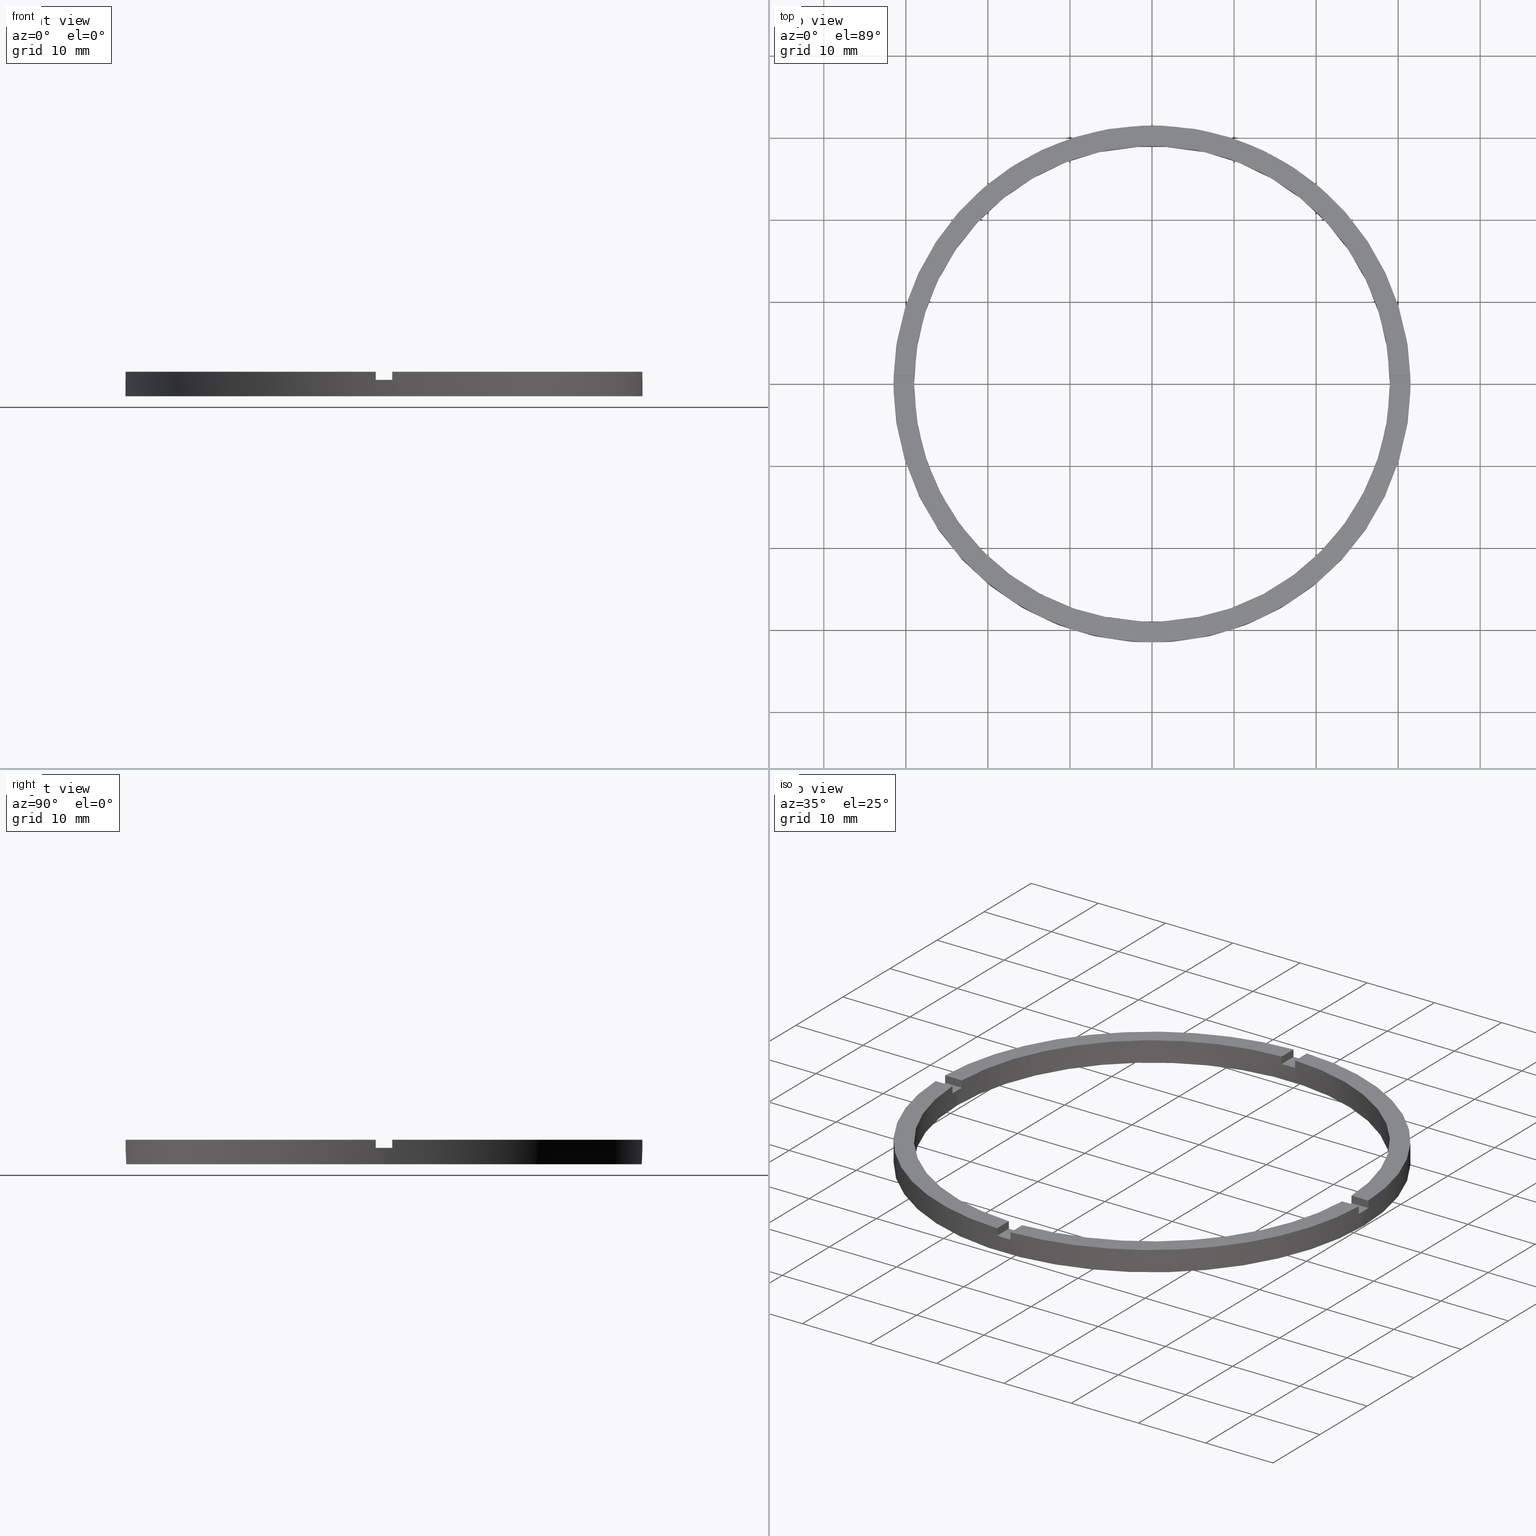
[diagram: canonical four-view strip — front | top / right | iso, engineering-drawing reading convention]
A machine part, canonical four-view strip (front | top / right | iso — engineering-drawing reading convention). The complete STEP part file that produces these views, byte-faithful:
ISO-10303-21;
HEADER;
FILE_DESCRIPTION (( 'STEP AP203' ),
    '1' );
FILE_NAME ('514130.step',
    '2024-12-26T02:40:22',
    ( 'MSI' ),
    ( '' ),
    'SwSTEP 2.0',
    'SolidWorks 2020',
    '' );
FILE_SCHEMA (( 'CONFIG_CONTROL_DESIGN' ));
ENDSEC;

DATA;
#1 = VERTEX_POINT ( 'NONE', #174 ) ;
#2 = ORIENTED_EDGE ( 'NONE', *, *, #105, .F. ) ;
#3 = MECHANICAL_CONTEXT ( 'NONE', #146, 'mechanical' ) ;
#4 = ORIENTED_EDGE ( 'NONE', *, *, #500, .T. ) ;
#5 = CARTESIAN_POINT ( 'NONE',  ( 0.000000000000000000, 0.000000000000000000, 3.000000000000000000 ) ) ;
#6 = VERTEX_POINT ( 'NONE', #61 ) ;
#7 = CARTESIAN_POINT ( 'NONE',  ( 29.00000000000000000, 3.551475717527324030E-15, 3.000000000000000000 ) ) ;
#8 = EDGE_CURVE ( 'NONE', #171, #774, #434, .T. ) ;
#9 = CARTESIAN_POINT ( 'NONE',  ( -31.48412298286233124, 0.9999999999999742428, 3.000000000000000000 ) ) ;
#10 = AXIS2_PLACEMENT_3D ( 'NONE', #551, #651, #600 ) ;
#11 = EDGE_CURVE ( 'NONE', #774, #451, #443, .T. ) ;
#12 = EDGE_CURVE ( 'NONE', #1, #682, #192, .T. ) ;
#13 = EDGE_LOOP ( 'NONE', ( #154, #504, #495, #769 ) ) ;
#14 = DIRECTION ( 'NONE',  ( 1.000000000000000000, 0.000000000000000000, 0.000000000000000000 ) ) ;
#15 = ORIENTED_EDGE ( 'NONE', *, *, #473, .T. ) ;
#16 = EDGE_CURVE ( 'NONE', #737, #451, #709, .T. ) ;
#17 = CARTESIAN_POINT ( 'NONE',  ( 28.98275349237887255, -1.000000000000158540, 3.000000000000000000 ) ) ;
#18 = ORIENTED_EDGE ( 'NONE', *, *, #11, .T. ) ;
#19 = ORIENTED_EDGE ( 'NONE', *, *, #535, .T. ) ;
#20 = AXIS2_PLACEMENT_3D ( 'NONE', #381, #619, #717 ) ;
#21 = DIRECTION ( 'NONE',  ( 1.000000000000000000, 0.000000000000000000, 0.000000000000000000 ) ) ;
#22 = APPROVAL ( #292, 'δָ��' ) ;
#23 = DIRECTION ( 'NONE',  ( 0.000000000000000000, 0.000000000000000000, 1.000000000000000000 ) ) ;
#24 = EDGE_CURVE ( 'NONE', #564, #451, #730, .T. ) ;
#25 = EDGE_LOOP ( 'NONE', ( #711, #510, #498, #658 ) ) ;
#26 = ORIENTED_EDGE ( 'NONE', *, *, #323, .T. ) ;
#27 = DIRECTION ( 'NONE',  ( 1.000000000000000000, 0.000000000000000000, 0.000000000000000000 ) ) ;
#28 = ORIENTED_EDGE ( 'NONE', *, *, #242, .T. ) ;
#29 = DIRECTION ( 'NONE',  ( 1.301042606982605074E-16, -1.000000000000000000, 0.000000000000000000 ) ) ;
#30 = CARTESIAN_POINT ( 'NONE',  ( 31.50000000000000000, 3.857637417314162689E-15, 3.000000000000000000 ) ) ;
#31 = VERTEX_POINT ( 'NONE', #387 ) ;
#32 = EDGE_LOOP ( 'NONE', ( #280, #421, #26, #686, #472, #673, #662, #244, #536, #490, #548, #159 ) ) ;
#33 = ADVANCED_FACE ( 'NONE', ( #454 ), #543, .T. ) ;
#34 = DIRECTION ( 'NONE',  ( -0.000000000000000000, 0.000000000000000000, 1.000000000000000000 ) ) ;
#35 = ORIENTED_EDGE ( 'NONE', *, *, #765, .F. ) ;
#36 = VERTEX_POINT ( 'NONE', #423 ) ;
#37 = DIRECTION ( 'NONE',  ( 1.000000000000000000, 0.000000000000000000, -0.000000000000000000 ) ) ;
#38 = DIRECTION ( 'NONE',  ( -6.505213034913022906E-17, 1.000000000000000000, 0.000000000000000000 ) ) ;
#39 = VERTEX_POINT ( 'NONE', #741 ) ;
#40 = ORIENTED_EDGE ( 'NONE', *, *, #424, .T. ) ;
#41 = CIRCLE ( 'NONE', #287, 29.00000000000000000 ) ;
#42 = VERTEX_POINT ( 'NONE', #262 ) ;
#43 = LINE ( 'NONE', #590, #299 ) ;
#44 = CARTESIAN_POINT ( 'NONE',  ( -1.000000000000162759, -21.50000000000017764, 3.000000000000000000 ) ) ;
#45 = ORIENTED_EDGE ( 'NONE', *, *, #593, .T. ) ;
#46 = DIRECTION ( 'NONE',  ( 0.000000000000000000, 0.000000000000000000, 1.000000000000000000 ) ) ;
#47 = LINE ( 'NONE', #315, #203 ) ;
#48 = ORIENTED_EDGE ( 'NONE', *, *, #71, .F. ) ;
#49 = DIRECTION ( 'NONE',  ( 1.000000000000000000, 0.000000000000000000, 0.000000000000000000 ) ) ;
#50 = EDGE_CURVE ( 'NONE', #540, #774, #198, .T. ) ;
#51 = DIRECTION ( 'NONE',  ( -0.000000000000000000, -0.000000000000000000, -1.000000000000000000 ) ) ;
#52 = DIRECTION ( 'NONE',  ( 0.000000000000000000, 0.000000000000000000, 1.000000000000000000 ) ) ;
#53 = AXIS2_PLACEMENT_3D ( 'NONE', #518, #264, #448 ) ;
#54 = CARTESIAN_POINT ( 'NONE',  ( 0.000000000000000000, 0.000000000000000000, 0.000000000000000000 ) ) ;
#55 = CARTESIAN_POINT ( 'NONE',  ( 0.000000000000000000, 0.000000000000000000, 2.000000000000000000 ) ) ;
#56 = DIRECTION ( 'NONE',  ( 0.000000000000000000, 0.000000000000000000, 1.000000000000000000 ) ) ;
#57 = AXIS2_PLACEMENT_3D ( 'NONE', #271, #576, #726 ) ;
#58 = CARTESIAN_POINT ( 'NONE',  ( 31.48412298286233479, 0.9999999999998414602, 2.000000000000000000 ) ) ;
#59 = CARTESIAN_POINT ( 'NONE',  ( -1.000000000000161871, -28.98275349237887255, 3.000000000000000000 ) ) ;
#60 = CARTESIAN_POINT ( 'NONE',  ( 0.000000000000000000, 0.000000000000000000, 3.000000000000000000 ) ) ;
#61 = CARTESIAN_POINT ( 'NONE',  ( 31.50000000000000000, 3.857637417314162689E-15, 2.000000000000000000 ) ) ;
#62 = CARTESIAN_POINT ( 'NONE',  ( -28.98275349237887966, 0.9999999999999746869, 3.000000000000000000 ) ) ;
#63 = CARTESIAN_POINT ( 'NONE',  ( -29.00000000000000000, 0.000000000000000000, 3.000000000000000000 ) ) ;
#64 = PERSON_AND_ORGANIZATION_ROLE ( 'design_supplier' ) ;
#65 = AXIS2_PLACEMENT_3D ( 'NONE', #509, #76, #27 ) ;
#66 = CARTESIAN_POINT ( 'NONE',  ( -1.000000000000024425, 31.48412298286233124, 3.000000000000000000 ) ) ;
#67 = DIRECTION ( 'NONE',  ( 0.000000000000000000, -0.000000000000000000, 1.000000000000000000 ) ) ;
#68 = CARTESIAN_POINT ( 'NONE',  ( 0.9999999999998382405, -28.98275349237888321, 3.000000000000000000 ) ) ;
#69 = CARTESIAN_POINT ( 'NONE',  ( -31.48412298286233124, 0.9999999999999742428, 3.000000000000000000 ) ) ;
#70 = APPROVAL_STATUS ( 'not_yet_approved' ) ;
#71 = EDGE_CURVE ( 'NONE', #106, #39, #715, .T. ) ;
#72 = CC_DESIGN_APPROVAL ( #22, ( #332 ) ) ;
#73 = DIRECTION ( 'NONE',  ( 1.000000000000000000, 0.000000000000000000, 0.000000000000000000 ) ) ;
#74 = DIRECTION ( 'NONE',  ( 1.000000000000000000, 0.000000000000000000, 0.000000000000000000 ) ) ;
#75 = EDGE_CURVE ( 'NONE', #564, #653, #718, .T. ) ;
#76 = DIRECTION ( 'NONE',  ( 0.000000000000000000, 0.000000000000000000, 1.000000000000000000 ) ) ;
#77 = DIRECTION ( 'NONE',  ( 1.000000000000000000, 0.000000000000000000, 0.000000000000000000 ) ) ;
#78 = DIRECTION ( 'NONE',  ( -1.000000000000000000, -6.505213034913022906E-17, 0.000000000000000000 ) ) ;
#79 = ADVANCED_FACE ( 'NONE', ( #202 ), #112, .F. ) ;
#80 = AXIS2_PLACEMENT_3D ( 'NONE', #603, #760, #334 ) ;
#81 = AXIS2_PLACEMENT_3D ( 'NONE', #60, #584, #180 ) ;
#82 = DIRECTION ( 'NONE',  ( 1.301042606982605074E-16, -1.000000000000000000, 0.000000000000000000 ) ) ;
#83 = CARTESIAN_POINT ( 'NONE',  ( 31.48412298286233479, 0.9999999999998414602, 3.000000000000000000 ) ) ;
#84 = CARTESIAN_POINT ( 'NONE',  ( -1.000000000000161871, -28.98275349237887255, 2.000000000000000000 ) ) ;
#85 = PLANE ( 'NONE',  #283 ) ;
#86 = DIRECTION ( 'NONE',  ( 0.000000000000000000, 0.000000000000000000, 1.000000000000000000 ) ) ;
#87 = AXIS2_PLACEMENT_3D ( 'NONE', #5, #618, #624 ) ;
#88 = FACE_OUTER_BOUND ( 'NONE', #685, .T. ) ;
#89 = DIRECTION ( 'NONE',  ( -1.000000000000000000, -1.301042606982605074E-16, 0.000000000000000000 ) ) ;
#90 = VECTOR ( 'NONE', #341, 1000.000000000000000 ) ;
#91 = AXIS2_PLACEMENT_3D ( 'NONE', #314, #558, #205 ) ;
#92 = AXIS2_PLACEMENT_3D ( 'NONE', #738, #641, #14 ) ;
#93 = CARTESIAN_POINT ( 'NONE',  ( 0.9999999999998386846, -31.48412298286233479, 3.000000000000000000 ) ) ;
#94 = EDGE_CURVE ( 'NONE', #171, #564, #204, .T. ) ;
#95 = DIRECTION ( 'NONE',  ( 0.000000000000000000, 1.000000000000000000, 0.000000000000000000 ) ) ;
#96 = DIRECTION ( 'NONE',  ( 1.000000000000000000, 0.000000000000000000, 0.000000000000000000 ) ) ;
#97 = ORIENTED_EDGE ( 'NONE', *, *, #235, .F. ) ;
#98 = EDGE_CURVE ( 'NONE', #31, #682, #601, .T. ) ;
#99 = LINE ( 'NONE', #243, #90 ) ;
#100 = CARTESIAN_POINT ( 'NONE',  ( -28.98275349237887610, -1.000000000000025313, 3.000000000000000000 ) ) ;
#101 = CARTESIAN_POINT ( 'NONE',  ( 28.98275349237887255, -1.000000000000158540, 3.000000000000000000 ) ) ;
#102 = CARTESIAN_POINT ( 'NONE',  ( 31.48412298286232414, -1.000000000000158540, 3.000000000000000000 ) ) ;
#103 = CARTESIAN_POINT ( 'NONE',  ( 0.000000000000000000, 0.000000000000000000, 2.000000000000000000 ) ) ;
#104 = APPROVAL ( #520, 'δָ��' ) ;
#105 = EDGE_CURVE ( 'NONE', #166, #278, #99, .T. ) ;
#106 = VERTEX_POINT ( 'NONE', #68 ) ;
#107 = CALENDAR_DATE ( 2024, 26, 12 ) ;
#108 = LOCAL_TIME ( 10, 40, 22.00000000000000000, #644 ) ;
#109 = ADVANCED_BREP_SHAPE_REPRESENTATION ( '514130', ( #256, #211 ), #306 ) ;
#110 = PERSON_AND_ORGANIZATION ( #485, #716 ) ;
#111 = ADVANCED_FACE ( 'NONE', ( #88 ), #499, .T. ) ;
#112 = PLANE ( 'NONE',  #91 ) ;
#113 = DIRECTION ( 'NONE',  ( -0.000000000000000000, -0.000000000000000000, -1.000000000000000000 ) ) ;
#114 = PERSON_AND_ORGANIZATION ( #485, #716 ) ;
#115 = CARTESIAN_POINT ( 'NONE',  ( -31.48412298286233124, 0.9999999999999742428, 2.000000000000000000 ) ) ;
#116 = EDGE_CURVE ( 'NONE', #187, #700, #353, .T. ) ;
#117 = CARTESIAN_POINT ( 'NONE',  ( -28.98275349237887610, -1.000000000000025313, 2.000000000000000000 ) ) ;
#118 = CALENDAR_DATE ( 2024, 26, 12 ) ;
#119 = DATE_AND_TIME ( #125, #366 ) ;
#120 = APPROVAL_PERSON_ORGANIZATION ( #110, #484, #452 ) ;
#121 = CARTESIAN_POINT ( 'NONE',  ( 0.9999999999999754641, 28.98275349237887966, 3.000000000000000000 ) ) ;
#122 = PERSON_AND_ORGANIZATION ( #485, #716 ) ;
#123 = CARTESIAN_POINT ( 'NONE',  ( 0.000000000000000000, 0.000000000000000000, 2.000000000000000000 ) ) ;
#124 = CARTESIAN_POINT ( 'NONE',  ( 0.000000000000000000, 0.000000000000000000, 3.000000000000000000 ) ) ;
#125 = CALENDAR_DATE ( 2024, 26, 12 ) ;
#126 = AXIS2_PLACEMENT_3D ( 'NONE', #659, #755, #748 ) ;
#127 = EDGE_CURVE ( 'NONE', #699, #612, #349, .T. ) ;
#128 = EDGE_LOOP ( 'NONE', ( #251, #772, #275, #513 ) ) ;
#129 = EDGE_LOOP ( 'NONE', ( #554, #756, #779, #288 ) ) ;
#130 = EDGE_CURVE ( 'NONE', #440, #1, #480, .T. ) ;
#131 = APPROVAL_DATE_TIME ( #639, #484 ) ;
#132 = ORIENTED_EDGE ( 'NONE', *, *, #732, .T. ) ;
#133 = APPROVAL_DATE_TIME ( #119, #104 ) ;
#134 = EDGE_CURVE ( 'NONE', #502, #455, #229, .T. ) ;
#135 = PERSON_AND_ORGANIZATION ( #485, #716 ) ;
#136 = FACE_BOUND ( 'NONE', #430, .T. ) ;
#137 = DIRECTION ( 'NONE',  ( 1.000000000000000000, 0.000000000000000000, 0.000000000000000000 ) ) ;
#138 = VECTOR ( 'NONE', #710, 1000.000000000000000 ) ;
#139 = CIRCLE ( 'NONE', #20, 29.00000000000000000 ) ;
#140 = ORIENTED_EDGE ( 'NONE', *, *, #50, .T. ) ;
#141 = CIRCLE ( 'NONE', #628, 29.00000000000000000 ) ;
#142 = PRODUCT_DEFINITION_FORMATION_WITH_SPECIFIED_SOURCE ( '�κ�', '', #269, .NOT_KNOWN. ) ;
#143 = VECTOR ( 'NONE', #82, 1000.000000000000000 ) ;
#144 = EDGE_CURVE ( 'NONE', #749, #653, #744, .T. ) ;
#145 = FACE_OUTER_BOUND ( 'NONE', #179, .T. ) ;
#146 = APPLICATION_CONTEXT ( 'configuration controlled 3d designs of mechanical parts and assemblies' ) ;
#147 = VERTEX_POINT ( 'NONE', #199 ) ;
#148 = CIRCLE ( 'NONE', #476, 31.50000000000000000 ) ;
#149 = ORIENTED_EDGE ( 'NONE', *, *, #16, .F. ) ;
#150 = VECTOR ( 'NONE', #467, 1000.000000000000000 ) ;
#151 = ORIENTED_EDGE ( 'NONE', *, *, #378, .F. ) ;
#152 = FACE_OUTER_BOUND ( 'NONE', #25, .T. ) ;
#153 = VECTOR ( 'NONE', #231, 1000.000000000000000 ) ;
#154 = ORIENTED_EDGE ( 'NONE', *, *, #254, .F. ) ;
#155 = LINE ( 'NONE', #528, #153 ) ;
#156 = CARTESIAN_POINT ( 'NONE',  ( -1.000000000000161426, -31.48412298286232414, 3.000000000000000000 ) ) ;
#157 = CIRCLE ( 'NONE', #208, 29.00000000000000000 ) ;
#158 = VERTEX_POINT ( 'NONE', #100 ) ;
#159 = ORIENTED_EDGE ( 'NONE', *, *, #575, .T. ) ;
#160 = VECTOR ( 'NONE', #507, 1000.000000000000000 ) ;
#161 = CLOSED_SHELL ( 'NONE', ( #414, #568, #33, #745, #559, #489, #357, #259, #255, #313, #316, #647, #324, #763, #441, #565, #605, #111, #268, #79, #668 ) ) ;
#162 = CARTESIAN_POINT ( 'NONE',  ( 0.000000000000000000, 0.000000000000000000, 2.000000000000000000 ) ) ;
#163 = DIRECTION ( 'NONE',  ( 1.000000000000000000, 0.000000000000000000, 0.000000000000000000 ) ) ;
#164 = CARTESIAN_POINT ( 'NONE',  ( -1.000000000000024425, 28.98275349237887610, 3.000000000000000000 ) ) ;
#165 = CIRCLE ( 'NONE', #625, 31.50000000000000000 ) ;
#166 = VERTEX_POINT ( 'NONE', #17 ) ;
#167 = ORIENTED_EDGE ( 'NONE', *, *, #197, .T. ) ;
#168 = VECTOR ( 'NONE', #488, 1000.000000000000000 ) ;
#169 = ORIENTED_EDGE ( 'NONE', *, *, #8, .T. ) ;
#170 = CIRCLE ( 'NONE', #57, 29.00000000000000000 ) ;
#171 = VERTEX_POINT ( 'NONE', #66 ) ;
#172 = LINE ( 'NONE', #93, #660 ) ;
#173 = ORIENTED_EDGE ( 'NONE', *, *, #201, .T. ) ;
#174 = CARTESIAN_POINT ( 'NONE',  ( 29.00000000000000000, 3.551475717527324030E-15, 0.000000000000000000 ) ) ;
#175 = LINE ( 'NONE', #279, #669 ) ;
#176 = VERTEX_POINT ( 'NONE', #248 ) ;
#177 = CARTESIAN_POINT ( 'NONE',  ( -31.50000000000000000, 0.000000000000000000, 3.000000000000000000 ) ) ;
#178 = LINE ( 'NONE', #664, #675 ) ;
#179 = EDGE_LOOP ( 'NONE', ( #557, #429, #167, #151, #752, #19 ) ) ;
#180 = DIRECTION ( 'NONE',  ( 1.000000000000000000, 0.000000000000000000, -0.000000000000000000 ) ) ;
#181 = ORIENTED_EDGE ( 'NONE', *, *, #621, .F. ) ;
#182 = FACE_OUTER_BOUND ( 'NONE', #521, .T. ) ;
#183 = VERTEX_POINT ( 'NONE', #409 ) ;
#184 = VECTOR ( 'NONE', #734, 1000.000000000000000 ) ;
#185 = ORIENTED_EDGE ( 'NONE', *, *, #541, .T. ) ;
#186 = LINE ( 'NONE', #44, #143 ) ;
#187 = VERTEX_POINT ( 'NONE', #115 ) ;
#188 = ORIENTED_EDGE ( 'NONE', *, *, #346, .F. ) ;
#189 = DIRECTION ( 'NONE',  ( 0.000000000000000000, -0.000000000000000000, 1.000000000000000000 ) ) ;
#190 = EDGE_LOOP ( 'NONE', ( #2, #207, #210, #360 ) ) ;
#191 = AXIS2_PLACEMENT_3D ( 'NONE', #403, #542, #585 ) ;
#192 = CIRCLE ( 'NONE', #761, 29.00000000000000000 ) ;
#193 = DIRECTION ( 'NONE',  ( 0.000000000000000000, 0.000000000000000000, 1.000000000000000000 ) ) ;
#194 = ORIENTED_EDGE ( 'NONE', *, *, #134, .F. ) ;
#195 = VECTOR ( 'NONE', #246, 1000.000000000000000 ) ;
#196 = AXIS2_PLACEMENT_3D ( 'NONE', #588, #595, #352 ) ;
#197 = EDGE_CURVE ( 'NONE', #42, #705, #746, .T. ) ;
#198 = CIRCLE ( 'NONE', #416, 31.50000000000000000 ) ;
#199 = CARTESIAN_POINT ( 'NONE',  ( 0.9999999999998386846, -31.48412298286233479, 3.000000000000000000 ) ) ;
#200 = LINE ( 'NONE', #101, #450 ) ;
#201 = EDGE_CURVE ( 'NONE', #158, #455, #41, .T. ) ;
#202 = FACE_OUTER_BOUND ( 'NONE', #282, .T. ) ;
#203 = VECTOR ( 'NONE', #317, 1000.000000000000000 ) ;
#204 = LINE ( 'NONE', #648, #606 ) ;
#205 = DIRECTION ( 'NONE',  ( 0.000000000000000000, 0.000000000000000000, -1.000000000000000000 ) ) ;
#206 = VECTOR ( 'NONE', #479, 1000.000000000000000 ) ;
#207 = ORIENTED_EDGE ( 'NONE', *, *, #477, .F. ) ;
#208 = AXIS2_PLACEMENT_3D ( 'NONE', #775, #370, #373 ) ;
#209 = PERSON_AND_ORGANIZATION_ROLE ( 'classification_officer' ) ;
#210 = ORIENTED_EDGE ( 'NONE', *, *, #508, .F. ) ;
#211 = AXIS2_PLACEMENT_3D ( 'NONE', #581, #228, #49 ) ;
#212 = DIRECTION ( 'NONE',  ( -0.000000000000000000, -0.000000000000000000, -1.000000000000000000 ) ) ;
#213 = EDGE_CURVE ( 'NONE', #383, #183, #555, .T. ) ;
#214 = CARTESIAN_POINT ( 'NONE',  ( 0.000000000000000000, 0.000000000000000000, 3.000000000000000000 ) ) ;
#215 = CARTESIAN_POINT ( 'NONE',  ( -28.98275349237887966, 0.9999999999999746869, 3.000000000000000000 ) ) ;
#216 = ORIENTED_EDGE ( 'NONE', *, *, #722, .T. ) ;
#217 = CARTESIAN_POINT ( 'NONE',  ( 31.48412298286232414, -1.000000000000158540, 3.000000000000000000 ) ) ;
#218 = CARTESIAN_POINT ( 'NONE',  ( 0.000000000000000000, 0.000000000000000000, 3.000000000000000000 ) ) ;
#219 = DIRECTION ( 'NONE',  ( 0.000000000000000000, 0.000000000000000000, 1.000000000000000000 ) ) ;
#220 = ORIENTED_EDGE ( 'NONE', *, *, #346, .T. ) ;
#221 = ORIENTED_EDGE ( 'NONE', *, *, #523, .F. ) ;
#222 = ORIENTED_EDGE ( 'NONE', *, *, #130, .F. ) ;
#223 = PLANE ( 'NONE',  #126 ) ;
#224 = CARTESIAN_POINT ( 'NONE',  ( -31.50000000000000000, 0.000000000000000000, 2.000000000000000000 ) ) ;
#225 = EDGE_CURVE ( 'NONE', #737, #298, #43, .T. ) ;
#226 = DIRECTION ( 'NONE',  ( 0.000000000000000000, 0.000000000000000000, 1.000000000000000000 ) ) ;
#227 = VECTOR ( 'NONE', #739, 1000.000000000000000 ) ;
#228 = DIRECTION ( 'NONE',  ( 0.000000000000000000, 0.000000000000000000, 1.000000000000000000 ) ) ;
#229 = LINE ( 'NONE', #59, #227 ) ;
#230 = AXIS2_PLACEMENT_3D ( 'NONE', #162, #766, #137 ) ;
#231 = DIRECTION ( 'NONE',  ( -1.000000000000000000, -6.505213034913022906E-17, -0.000000000000000000 ) ) ;
#232 = EDGE_CURVE ( 'NONE', #257, #42, #47, .T. ) ;
#233 = APPLICATION_PROTOCOL_DEFINITION ( 'international standard', 'config_control_design', 1994, #146 ) ;
#234 = AXIS2_PLACEMENT_3D ( 'NONE', #218, #318, #750 ) ;
#235 = EDGE_CURVE ( 'NONE', #298, #36, #714, .T. ) ;
#236 = CARTESIAN_POINT ( 'NONE',  ( -1.000000000000024425, 31.48412298286233124, 2.000000000000000000 ) ) ;
#237 = APPLICATION_PROTOCOL_DEFINITION ( 'international standard', 'config_control_design', 1994, #527 ) ;
#238 = PLANE ( 'NONE',  #613 ) ;
#239 = DIRECTION ( 'NONE',  ( 1.000000000000000000, 1.951563910473908228E-16, -0.000000000000000000 ) ) ;
#240 = CC_DESIGN_APPROVAL ( #484, ( #142 ) ) ;
#241 = ORIENTED_EDGE ( 'NONE', *, *, #144, .F. ) ;
#242 = EDGE_CURVE ( 'NONE', #6, #383, #707, .T. ) ;
#243 = CARTESIAN_POINT ( 'NONE',  ( 21.49999999999999645, -1.000000000000159206, 3.000000000000000000 ) ) ;
#244 = ORIENTED_EDGE ( 'NONE', *, *, #375, .F. ) ;
#245 = DIRECTION ( 'NONE',  ( -1.951563910473908228E-16, 1.000000000000000000, 0.000000000000000000 ) ) ;
#246 = DIRECTION ( 'NONE',  ( -0.000000000000000000, -0.000000000000000000, -1.000000000000000000 ) ) ;
#247 = ORIENTED_EDGE ( 'NONE', *, *, #586, .F. ) ;
#248 = CARTESIAN_POINT ( 'NONE',  ( 31.50000000000000000, 3.857637417314162689E-15, 0.000000000000000000 ) ) ;
#249 = ORIENTED_EDGE ( 'NONE', *, *, #130, .T. ) ;
#250 = ORIENTED_EDGE ( 'NONE', *, *, #645, .T. ) ;
#251 = ORIENTED_EDGE ( 'NONE', *, *, #94, .T. ) ;
#252 = DIRECTION ( 'NONE',  ( 1.000000000000000000, 1.951563910473908228E-16, -0.000000000000000000 ) ) ;
#253 = ORIENTED_EDGE ( 'NONE', *, *, #674, .T. ) ;
#254 = EDGE_CURVE ( 'NONE', #777, #437, #407, .T. ) ;
#255 = ADVANCED_FACE ( 'NONE', ( #666 ), #453, .F. ) ;
#256 = MANIFOLD_SOLID_BREP ( '�г�-����1', #161 ) ;
#257 = VERTEX_POINT ( 'NONE', #494 ) ;
#258 = CARTESIAN_POINT ( 'NONE',  ( 0.9999999999998382405, -28.98275349237888321, 3.000000000000000000 ) ) ;
#259 = ADVANCED_FACE ( 'NONE', ( #764 ), #768, .T. ) ;
#260 = CARTESIAN_POINT ( 'NONE',  ( -21.50000000000018119, -1.000000000000023981, 2.000000000000000000 ) ) ;
#261 = ORIENTED_EDGE ( 'NONE', *, *, #339, .F. ) ;
#262 = CARTESIAN_POINT ( 'NONE',  ( -31.48412298286233124, -1.000000000000025757, 2.000000000000000000 ) ) ;
#263 = CARTESIAN_POINT ( 'NONE',  ( 21.49999999999999645, 0.9999999999998409050, 2.000000000000000000 ) ) ;
#264 = DIRECTION ( 'NONE',  ( 0.000000000000000000, -0.000000000000000000, 1.000000000000000000 ) ) ;
#265 = PRODUCT_RELATED_PRODUCT_CATEGORY ( 'detail', '', ( #269 ) ) ;
#266 = CARTESIAN_POINT ( 'NONE',  ( 0.000000000000000000, 0.000000000000000000, 3.000000000000000000 ) ) ;
#267 = PLANE ( 'NONE',  #458 ) ;
#268 = ADVANCED_FACE ( 'NONE', ( #503 ), #223, .F. ) ;
#269 = PRODUCT ( '514130', '514130', '', ( #3 ) ) ;
#270 = DIRECTION ( 'NONE',  ( 1.000000000000000000, 0.000000000000000000, 0.000000000000000000 ) ) ;
#271 = CARTESIAN_POINT ( 'NONE',  ( 0.000000000000000000, 0.000000000000000000, 2.000000000000000000 ) ) ;
#272 = EDGE_LOOP ( 'NONE', ( #549, #284 ) ) ;
#273 = ORIENTED_EDGE ( 'NONE', *, *, #201, .F. ) ;
#274 = ORIENTED_EDGE ( 'NONE', *, *, #591, .F. ) ;
#275 = ORIENTED_EDGE ( 'NONE', *, *, #11, .F. ) ;
#276 = CARTESIAN_POINT ( 'NONE',  ( 31.48412298286233479, 0.9999999999998414602, 3.000000000000000000 ) ) ;
#277 = ORIENTED_EDGE ( 'NONE', *, *, #213, .F. ) ;
#278 = VERTEX_POINT ( 'NONE', #217 ) ;
#279 = CARTESIAN_POINT ( 'NONE',  ( -21.50000000000018119, 0.9999999999999761302, 3.000000000000000000 ) ) ;
#280 = ORIENTED_EDGE ( 'NONE', *, *, #500, .F. ) ;
#281 = ORIENTED_EDGE ( 'NONE', *, *, #213, .T. ) ;
#282 = EDGE_LOOP ( 'NONE', ( #247, #501, #640, #690 ) ) ;
#283 = AXIS2_PLACEMENT_3D ( 'NONE', #326, #534, #781 ) ;
#284 = ORIENTED_EDGE ( 'NONE', *, *, #722, .F. ) ;
#285 = DIRECTION ( 'NONE',  ( 1.000000000000000000, 0.000000000000000000, 0.000000000000000000 ) ) ;
#286 = DIRECTION ( 'NONE',  ( -1.301042606982605074E-16, 1.000000000000000000, -0.000000000000000000 ) ) ;
#287 = AXIS2_PLACEMENT_3D ( 'NONE', #214, #505, #311 ) ;
#288 = ORIENTED_EDGE ( 'NONE', *, *, #609, .T. ) ;
#289 =( NAMED_UNIT ( * ) PLANE_ANGLE_UNIT ( ) SI_UNIT ( $, .RADIAN. ) );
#290 = EDGE_CURVE ( 'NONE', #502, #39, #771, .T. ) ;
#291 = ORIENTED_EDGE ( 'NONE', *, *, #75, .T. ) ;
#292 = APPROVAL_STATUS ( 'not_yet_approved' ) ;
#293 = EDGE_CURVE ( 'NONE', #679, #36, #506, .T. ) ;
#294 = CARTESIAN_POINT ( 'NONE',  ( 0.000000000000000000, 0.000000000000000000, 2.000000000000000000 ) ) ;
#295 = CARTESIAN_POINT ( 'NONE',  ( 0.9999999999998373523, -21.50000000000017764, 2.000000000000000000 ) ) ;
#296 = ORIENTED_EDGE ( 'NONE', *, *, #473, .F. ) ;
#297 = VECTOR ( 'NONE', #344, 1000.000000000000000 ) ;
#298 = VERTEX_POINT ( 'NONE', #121 ) ;
#299 = VECTOR ( 'NONE', #561, 1000.000000000000000 ) ;
#300 = EDGE_LOOP ( 'NONE', ( #762, #552, #40, #35 ) ) ;
#301 = DIRECTION ( 'NONE',  ( 1.951563910473908228E-16, -1.000000000000000000, 0.000000000000000000 ) ) ;
#302 = CARTESIAN_POINT ( 'NONE',  ( -1.000000000000024425, 31.48412298286233124, 3.000000000000000000 ) ) ;
#303 = ORIENTED_EDGE ( 'NONE', *, *, #98, .T. ) ;
#304 = ORIENTED_EDGE ( 'NONE', *, *, #127, .F. ) ;
#305 = CARTESIAN_POINT ( 'NONE',  ( -1.000000000000162759, -21.50000000000017764, 2.000000000000000000 ) ) ;
#306 =( GEOMETRIC_REPRESENTATION_CONTEXT ( 3 ) GLOBAL_UNCERTAINTY_ASSIGNED_CONTEXT ( ( #469 ) ) GLOBAL_UNIT_ASSIGNED_CONTEXT ( ( #587, #289, #634 ) ) REPRESENTATION_CONTEXT ( 'NONE', 'WORKASPACE' ) );
#307 = ORIENTED_EDGE ( 'NONE', *, *, #290, .T. ) ;
#308 = ORIENTED_EDGE ( 'NONE', *, *, #378, .T. ) ;
#309 = DIRECTION ( 'NONE',  ( 1.000000000000000000, 1.951563910473908228E-16, 0.000000000000000000 ) ) ;
#310 = ORIENTED_EDGE ( 'NONE', *, *, #242, .F. ) ;
#311 = DIRECTION ( 'NONE',  ( 1.000000000000000000, 0.000000000000000000, 0.000000000000000000 ) ) ;
#312 = DIRECTION ( 'NONE',  ( 1.000000000000000000, 0.000000000000000000, 0.000000000000000000 ) ) ;
#313 = ADVANCED_FACE ( 'NONE', ( #152 ), #731, .F. ) ;
#314 = CARTESIAN_POINT ( 'NONE',  ( 0.9999999999999754641, 21.50000000000000000, 2.000000000000000000 ) ) ;
#315 = CARTESIAN_POINT ( 'NONE',  ( -31.48412298286233124, -1.000000000000025757, 3.000000000000000000 ) ) ;
#316 = ADVANCED_FACE ( 'NONE', ( #404 ), #343, .F. ) ;
#317 = DIRECTION ( 'NONE',  ( -0.000000000000000000, -0.000000000000000000, -1.000000000000000000 ) ) ;
#318 = DIRECTION ( 'NONE',  ( 0.000000000000000000, 0.000000000000000000, 1.000000000000000000 ) ) ;
#319 = CARTESIAN_POINT ( 'NONE',  ( 0.9999999999999754641, 31.48412298286233124, 2.000000000000000000 ) ) ;
#320 = AXIS2_PLACEMENT_3D ( 'NONE', #103, #189, #96 ) ;
#321 = EDGE_CURVE ( 'NONE', #187, #699, #692, .T. ) ;
#322 = CC_DESIGN_SECURITY_CLASSIFICATION ( #556, ( #142 ) ) ;
#323 = EDGE_CURVE ( 'NONE', #437, #278, #646, .T. ) ;
#324 = ADVANCED_FACE ( 'NONE', ( #649 ), #517, .F. ) ;
#325 = EDGE_CURVE ( 'NONE', #147, #695, #172, .T. ) ;
#326 = CARTESIAN_POINT ( 'NONE',  ( 0.000000000000000000, 0.000000000000000000, 0.000000000000000000 ) ) ;
#327 = DIRECTION ( 'NONE',  ( 0.000000000000000000, 0.000000000000000000, 1.000000000000000000 ) ) ;
#328 = PERSON_AND_ORGANIZATION_ROLE ( 'creator' ) ;
#329 = AXIS2_PLACEMENT_3D ( 'NONE', #579, #56, #163 ) ;
#330 = CARTESIAN_POINT ( 'NONE',  ( 29.00000000000000000, 3.551475717527324030E-15, 2.000000000000000000 ) ) ;
#331 = CARTESIAN_POINT ( 'NONE',  ( 0.000000000000000000, 0.000000000000000000, 3.000000000000000000 ) ) ;
#332 = PRODUCT_DEFINITION ( 'δ֪', '', #142, #363 ) ;
#333 = CARTESIAN_POINT ( 'NONE',  ( 31.48412298286232414, -1.000000000000158540, 2.000000000000000000 ) ) ;
#334 = DIRECTION ( 'NONE',  ( -1.000000000000000000, 0.000000000000000000, 0.000000000000000000 ) ) ;
#335 = DIRECTION ( 'NONE',  ( -0.000000000000000000, -1.000000000000000000, -0.000000000000000000 ) ) ;
#336 = APPROVAL_ROLE ( '' ) ;
#337 = CARTESIAN_POINT ( 'NONE',  ( 21.49999999999999645, -1.000000000000159206, 2.000000000000000000 ) ) ;
#338 = DIRECTION ( 'NONE',  ( 1.000000000000000000, 0.000000000000000000, 0.000000000000000000 ) ) ;
#339 = EDGE_CURVE ( 'NONE', #653, #700, #175, .T. ) ;
#340 = CARTESIAN_POINT ( 'NONE',  ( -21.50000000000018119, 0.9999999999999761302, 2.000000000000000000 ) ) ;
#341 = DIRECTION ( 'NONE',  ( 1.000000000000000000, 6.505213034913022906E-17, 0.000000000000000000 ) ) ;
#342 = PLANE ( 'NONE',  #522 ) ;
#343 = PLANE ( 'NONE',  #753 ) ;
#344 = DIRECTION ( 'NONE',  ( -1.000000000000000000, -6.505213034913022906E-17, -0.000000000000000000 ) ) ;
#345 = CC_DESIGN_PERSON_AND_ORGANIZATION_ASSIGNMENT ( #374, #393, ( #269 ) ) ;
#346 = EDGE_CURVE ( 'NONE', #679, #608, #155, .T. ) ;
#347 = VECTOR ( 'NONE', #539, 1000.000000000000000 ) ;
#348 = DIRECTION ( 'NONE',  ( 1.000000000000000000, 6.505213034913022906E-17, 0.000000000000000000 ) ) ;
#349 = LINE ( 'NONE', #177, #740 ) ;
#350 = AXIS2_PLACEMENT_3D ( 'NONE', #615, #226, #519 ) ;
#351 = AXIS2_PLACEMENT_3D ( 'NONE', #266, #767, #567 ) ;
#352 = DIRECTION ( 'NONE',  ( 1.000000000000000000, 0.000000000000000000, -0.000000000000000000 ) ) ;
#353 = LINE ( 'NONE', #9, #347 ) ;
#354 = CARTESIAN_POINT ( 'NONE',  ( 0.000000000000000000, 0.000000000000000000, 2.000000000000000000 ) ) ;
#355 = AXIS2_PLACEMENT_3D ( 'NONE', #123, #598, #37 ) ;
#356 = EDGE_LOOP ( 'NONE', ( #97, #181, #188, #438 ) ) ;
#357 = ADVANCED_FACE ( 'NONE', ( #422, #136 ), #85, .F. ) ;
#358 = CARTESIAN_POINT ( 'NONE',  ( -1.000000000000162759, -21.50000000000017764, 2.000000000000000000 ) ) ;
#359 = CARTESIAN_POINT ( 'NONE',  ( 0.9999999999998373523, -21.50000000000017764, 3.000000000000000000 ) ) ;
#360 = ORIENTED_EDGE ( 'NONE', *, *, #515, .T. ) ;
#361 = CARTESIAN_POINT ( 'NONE',  ( 0.000000000000000000, 0.000000000000000000, 2.000000000000000000 ) ) ;
#362 = EDGE_LOOP ( 'NONE', ( #310, #4, #216, #304, #427, #725, #435, #169, #693, #185, #733, #516 ) ) ;
#363 = DESIGN_CONTEXT ( 'detailed design', #527, 'design' ) ;
#364 = DIRECTION ( 'NONE',  ( 1.000000000000000000, 6.505213034913022906E-17, 0.000000000000000000 ) ) ;
#365 = CARTESIAN_POINT ( 'NONE',  ( 21.49999999999999645, 0.9999999999998409050, 2.000000000000000000 ) ) ;
#366 = LOCAL_TIME ( 10, 40, 22.00000000000000000, #389 ) ;
#367 = LOCAL_TIME ( 10, 40, 22.00000000000000000, #379 ) ;
#368 = AXIS2_PLACEMENT_3D ( 'NONE', #361, #34, #270 ) ;
#369 = PLANE ( 'NONE',  #53 ) ;
#370 = DIRECTION ( 'NONE',  ( 0.000000000000000000, 0.000000000000000000, 1.000000000000000000 ) ) ;
#371 = DATE_TIME_ROLE ( 'classification_date' ) ;
#372 = COORDINATED_UNIVERSAL_TIME_OFFSET ( 8, 0, .AHEAD. ) ;
#373 = DIRECTION ( 'NONE',  ( 1.000000000000000000, 0.000000000000000000, 0.000000000000000000 ) ) ;
#374 = PERSON_AND_ORGANIZATION ( #485, #716 ) ;
#375 = EDGE_CURVE ( 'NONE', #257, #514, #432, .T. ) ;
#376 = DIRECTION ( 'NONE',  ( 1.000000000000000000, 0.000000000000000000, -0.000000000000000000 ) ) ;
#377 = PERSON_AND_ORGANIZATION ( #485, #716 ) ;
#378 = EDGE_CURVE ( 'NONE', #31, #705, #684, .T. ) ;
#379 = COORDINATED_UNIVERSAL_TIME_OFFSET ( 8, 0, .AHEAD. ) ;
#380 = CARTESIAN_POINT ( 'NONE',  ( 0.000000000000000000, 0.000000000000000000, 3.000000000000000000 ) ) ;
#381 = CARTESIAN_POINT ( 'NONE',  ( 0.000000000000000000, 0.000000000000000000, 2.000000000000000000 ) ) ;
#382 = CALENDAR_DATE ( 2024, 26, 12 ) ;
#383 = VERTEX_POINT ( 'NONE', #58 ) ;
#384 = AXIS2_PLACEMENT_3D ( 'NONE', #124, #219, #611 ) ;
#385 = DATE_AND_TIME ( #118, #629 ) ;
#386 = PERSON_AND_ORGANIZATION ( #485, #716 ) ;
#387 = CARTESIAN_POINT ( 'NONE',  ( -29.00000000000000000, 0.000000000000000000, 2.000000000000000000 ) ) ;
#388 = CC_DESIGN_PERSON_AND_ORGANIZATION_ASSIGNMENT ( #637, #533, ( #332 ) ) ;
#389 = COORDINATED_UNIVERSAL_TIME_OFFSET ( 8, 0, .AHEAD. ) ;
#390 = PLANE ( 'NONE',  #81 ) ;
#391 = LINE ( 'NONE', #614, #138 ) ;
#392 = FACE_OUTER_BOUND ( 'NONE', #190, .T. ) ;
#393 = PERSON_AND_ORGANIZATION_ROLE ( 'design_owner' ) ;
#394 = CIRCLE ( 'NONE', #329, 31.50000000000000000 ) ;
#395 = CARTESIAN_POINT ( 'NONE',  ( 0.000000000000000000, 0.000000000000000000, 0.000000000000000000 ) ) ;
#396 = ORIENTED_EDGE ( 'NONE', *, *, #71, .T. ) ;
#397 = FACE_OUTER_BOUND ( 'NONE', #362, .T. ) ;
#398 = DIRECTION ( 'NONE',  ( 1.301042606982605074E-16, -1.000000000000000000, 0.000000000000000000 ) ) ;
#399 = EDGE_CURVE ( 'NONE', #440, #183, #428, .T. ) ;
#400 = CYLINDRICAL_SURFACE ( 'NONE', #80, 31.50000000000000000 ) ;
#401 = FACE_OUTER_BOUND ( 'NONE', #783, .T. ) ;
#402 = ORIENTED_EDGE ( 'NONE', *, *, #399, .F. ) ;
#403 = CARTESIAN_POINT ( 'NONE',  ( 0.000000000000000000, 0.000000000000000000, 2.000000000000000000 ) ) ;
#404 = FACE_OUTER_BOUND ( 'NONE', #547, .T. ) ;
#405 = DIRECTION ( 'NONE',  ( 1.000000000000000000, 0.000000000000000000, 0.000000000000000000 ) ) ;
#406 = ORIENTED_EDGE ( 'NONE', *, *, #325, .F. ) ;
#407 = LINE ( 'NONE', #743, #697 ) ;
#408 = CIRCLE ( 'NONE', #234, 31.50000000000000000 ) ;
#409 = CARTESIAN_POINT ( 'NONE',  ( 28.98275349237888321, 0.9999999999998414602, 2.000000000000000000 ) ) ;
#410 = LINE ( 'NONE', #359, #150 ) ;
#411 = ORIENTED_EDGE ( 'NONE', *, *, #535, .F. ) ;
#412 = ORIENTED_EDGE ( 'NONE', *, *, #586, .T. ) ;
#413 = CIRCLE ( 'NONE', #350, 31.50000000000000000 ) ;
#414 = ADVANCED_FACE ( 'NONE', ( #698 ), #446, .F. ) ;
#415 = LINE ( 'NONE', #295, #678 ) ;
#416 = AXIS2_PLACEMENT_3D ( 'NONE', #497, #67, #21 ) ;
#417 = DIRECTION ( 'NONE',  ( -1.000000000000000000, 0.000000000000000000, 0.000000000000000000 ) ) ;
#418 = ORIENTED_EDGE ( 'NONE', *, *, #144, .T. ) ;
#419 = LINE ( 'NONE', #358, #681 ) ;
#420 = EDGE_LOOP ( 'NONE', ( #222, #537, #470, #754, #770, #665, #444, #291, #241, #45, #303, #461 ) ) ;
#421 = ORIENTED_EDGE ( 'NONE', *, *, #545, .F. ) ;
#422 = FACE_OUTER_BOUND ( 'NONE', #272, .T. ) ;
#423 = CARTESIAN_POINT ( 'NONE',  ( 0.9999999999999754641, 31.48412298286233124, 3.000000000000000000 ) ) ;
#424 = EDGE_CURVE ( 'NONE', #455, #514, #186, .T. ) ;
#425 = LINE ( 'NONE', #276, #160 ) ;
#426 = DIRECTION ( 'NONE',  ( 0.000000000000000000, 0.000000000000000000, 1.000000000000000000 ) ) ;
#427 = ORIENTED_EDGE ( 'NONE', *, *, #321, .F. ) ;
#428 = CIRCLE ( 'NONE', #230, 29.00000000000000000 ) ;
#429 = ORIENTED_EDGE ( 'NONE', *, *, #630, .T. ) ;
#430 = EDGE_LOOP ( 'NONE', ( #250, #492 ) ) ;
#431 = VECTOR ( 'NONE', #736, 1000.000000000000000 ) ;
#432 = CIRCLE ( 'NONE', #87, 31.50000000000000000 ) ;
#433 = EDGE_LOOP ( 'NONE', ( #464, #253, #261, #720 ) ) ;
#434 = LINE ( 'NONE', #302, #184 ) ;
#435 = ORIENTED_EDGE ( 'NONE', *, *, #674, .F. ) ;
#436 = LINE ( 'NONE', #475, #652 ) ;
#437 = VERTEX_POINT ( 'NONE', #333 ) ;
#438 = ORIENTED_EDGE ( 'NONE', *, *, #293, .T. ) ;
#439 = LINE ( 'NONE', #30, #672 ) ;
#440 = VERTEX_POINT ( 'NONE', #330 ) ;
#441 = ADVANCED_FACE ( 'NONE', ( #694 ), #238, .T. ) ;
#442 = DIRECTION ( 'NONE',  ( -0.000000000000000000, -0.000000000000000000, -1.000000000000000000 ) ) ;
#443 = LINE ( 'NONE', #776, #447 ) ;
#444 = ORIENTED_EDGE ( 'NONE', *, *, #24, .F. ) ;
#445 = CC_DESIGN_PERSON_AND_ORGANIZATION_ASSIGNMENT ( #377, #209, ( #556 ) ) ;
#446 = CYLINDRICAL_SURFACE ( 'NONE', #656, 29.00000000000000000 ) ;
#447 = VECTOR ( 'NONE', #335, 1000.000000000000000 ) ;
#448 = DIRECTION ( 'NONE',  ( 1.000000000000000000, 0.000000000000000000, -0.000000000000000000 ) ) ;
#449 = CARTESIAN_POINT ( 'NONE',  ( -1.000000000000161426, -31.48412298286232414, 3.000000000000000000 ) ) ;
#450 = VECTOR ( 'NONE', #721, 1000.000000000000000 ) ;
#451 = VERTEX_POINT ( 'NONE', #583 ) ;
#452 = APPROVAL_ROLE ( '' ) ;
#453 = CYLINDRICAL_SURFACE ( 'NONE', #569, 29.00000000000000000 ) ;
#454 = FACE_OUTER_BOUND ( 'NONE', #433, .T. ) ;
#455 = VERTEX_POINT ( 'NONE', #526 ) ;
#456 = CARTESIAN_POINT ( 'NONE',  ( 28.98275349237888321, 0.9999999999998414602, 3.000000000000000000 ) ) ;
#457 = LINE ( 'NONE', #156, #708 ) ;
#458 = AXIS2_PLACEMENT_3D ( 'NONE', #365, #38, #78 ) ;
#459 = VECTOR ( 'NONE', #212, 1000.000000000000000 ) ;
#460 = LINE ( 'NONE', #626, #712 ) ;
#461 = ORIENTED_EDGE ( 'NONE', *, *, #12, .F. ) ;
#462 = LINE ( 'NONE', #616, #206 ) ;
#463 = DIRECTION ( 'NONE',  ( 1.000000000000000000, 0.000000000000000000, 0.000000000000000000 ) ) ;
#464 = ORIENTED_EDGE ( 'NONE', *, *, #94, .F. ) ;
#465 = SECURITY_CLASSIFICATION_LEVEL ( 'unclassified' ) ;
#466 = DIRECTION ( 'NONE',  ( -1.000000000000000000, -1.951563910473908228E-16, 0.000000000000000000 ) ) ;
#467 = DIRECTION ( 'NONE',  ( -1.301042606982605074E-16, 1.000000000000000000, -0.000000000000000000 ) ) ;
#468 = DIRECTION ( 'NONE',  ( 0.000000000000000000, 0.000000000000000000, 1.000000000000000000 ) ) ;
#469 = UNCERTAINTY_MEASURE_WITH_UNIT (LENGTH_MEASURE( 1.000000000000000082E-05 ), #587, 'distance_accuracy_value', 'NONE');
#470 = ORIENTED_EDGE ( 'NONE', *, *, #732, .F. ) ;
#471 = AXIS2_PLACEMENT_3D ( 'NONE', #482, #301, #309 ) ;
#472 = ORIENTED_EDGE ( 'NONE', *, *, #325, .T. ) ;
#473 = EDGE_CURVE ( 'NONE', #777, #440, #170, .T. ) ;
#474 = EDGE_CURVE ( 'NONE', #158, #705, #391, .T. ) ;
#475 = CARTESIAN_POINT ( 'NONE',  ( 0.9999999999999754641, 21.50000000000000000, 2.000000000000000000 ) ) ;
#476 = AXIS2_PLACEMENT_3D ( 'NONE', #512, #571, #677 ) ;
#477 = EDGE_CURVE ( 'NONE', #106, #166, #157, .T. ) ;
#478 = DIRECTION ( 'NONE',  ( 1.000000000000000000, 1.301042606982605074E-16, 0.000000000000000000 ) ) ;
#479 = DIRECTION ( 'NONE',  ( -0.000000000000000000, -0.000000000000000000, -1.000000000000000000 ) ) ;
#480 = LINE ( 'NONE', #7, #742 ) ;
#481 = AXIS2_PLACEMENT_3D ( 'NONE', #337, #782, #364 ) ;
#482 = CARTESIAN_POINT ( 'NONE',  ( -21.50000000000018119, -1.000000000000023981, 2.000000000000000000 ) ) ;
#483 = VECTOR ( 'NONE', #193, 1000.000000000000000 ) ;
#484 = APPROVAL ( #70, 'δָ��' ) ;
#485 = PERSON ( 'δָ��', 'δָ��', 'δָ��', ('δָ��'), ('δָ��'), ('δָ��') ) ;
#486 = DIRECTION ( 'NONE',  ( 0.000000000000000000, 0.000000000000000000, 1.000000000000000000 ) ) ;
#487 = CARTESIAN_POINT ( 'NONE',  ( 28.98275349237887255, -1.000000000000158540, 2.000000000000000000 ) ) ;
#488 = DIRECTION ( 'NONE',  ( 0.000000000000000000, 0.000000000000000000, 1.000000000000000000 ) ) ;
#489 = ADVANCED_FACE ( 'NONE', ( #182 ), #563, .T. ) ;
#490 = ORIENTED_EDGE ( 'NONE', *, *, #630, .F. ) ;
#491 = DIRECTION ( 'NONE',  ( -0.000000000000000000, -0.000000000000000000, -1.000000000000000000 ) ) ;
#492 = ORIENTED_EDGE ( 'NONE', *, *, #12, .T. ) ;
#493 = ORIENTED_EDGE ( 'NONE', *, *, #424, .F. ) ;
#494 = CARTESIAN_POINT ( 'NONE',  ( -31.48412298286233124, -1.000000000000025757, 3.000000000000000000 ) ) ;
#495 = ORIENTED_EDGE ( 'NONE', *, *, #105, .T. ) ;
#496 = EDGE_LOOP ( 'NONE', ( #15, #249, #532, #650, #308, #560, #173, #194, #307, #48, #703, #727 ) ) ;
#497 = CARTESIAN_POINT ( 'NONE',  ( 0.000000000000000000, 0.000000000000000000, 2.000000000000000000 ) ) ;
#498 = ORIENTED_EDGE ( 'NONE', *, *, #197, .F. ) ;
#499 = PLANE ( 'NONE',  #531 ) ;
#500 = EDGE_CURVE ( 'NONE', #6, #176, #439, .T. ) ;
#501 = ORIENTED_EDGE ( 'NONE', *, *, #225, .T. ) ;
#502 = VERTEX_POINT ( 'NONE', #84 ) ;
#503 = FACE_OUTER_BOUND ( 'NONE', #128, .T. ) ;
#504 = ORIENTED_EDGE ( 'NONE', *, *, #735, .T. ) ;
#505 = DIRECTION ( 'NONE',  ( 0.000000000000000000, 0.000000000000000000, 1.000000000000000000 ) ) ;
#506 = CIRCLE ( 'NONE', #65, 31.50000000000000000 ) ;
#507 = DIRECTION ( 'NONE',  ( -0.000000000000000000, -0.000000000000000000, -1.000000000000000000 ) ) ;
#508 = EDGE_CURVE ( 'NONE', #147, #106, #410, .T. ) ;
#509 = CARTESIAN_POINT ( 'NONE',  ( 0.000000000000000000, 0.000000000000000000, 3.000000000000000000 ) ) ;
#510 = ORIENTED_EDGE ( 'NONE', *, *, #474, .T. ) ;
#511 = CC_DESIGN_PERSON_AND_ORGANIZATION_ASSIGNMENT ( #122, #328, ( #142 ) ) ;
#512 = CARTESIAN_POINT ( 'NONE',  ( 0.000000000000000000, 0.000000000000000000, 2.000000000000000000 ) ) ;
#513 = ORIENTED_EDGE ( 'NONE', *, *, #8, .F. ) ;
#514 = VERTEX_POINT ( 'NONE', #449 ) ;
#515 = EDGE_CURVE ( 'NONE', #147, #278, #413, .T. ) ;
#516 = ORIENTED_EDGE ( 'NONE', *, *, #523, .T. ) ;
#517 = PLANE ( 'NONE',  #589 ) ;
#518 = CARTESIAN_POINT ( 'NONE',  ( 0.000000000000000000, 0.000000000000000000, 2.000000000000000000 ) ) ;
#519 = DIRECTION ( 'NONE',  ( 1.000000000000000000, 0.000000000000000000, 0.000000000000000000 ) ) ;
#520 = APPROVAL_STATUS ( 'not_yet_approved' ) ;
#521 = EDGE_LOOP ( 'NONE', ( #493, #273, #780, #671 ) ) ;
#522 = AXIS2_PLACEMENT_3D ( 'NONE', #305, #89, #398 ) ;
#523 = EDGE_CURVE ( 'NONE', #679, #383, #425, .T. ) ;
#524 = DIRECTION ( 'NONE',  ( -1.000000000000000000, 0.000000000000000000, 0.000000000000000000 ) ) ;
#525 = CARTESIAN_POINT ( 'NONE',  ( -21.50000000000018119, 0.9999999999999761302, 2.000000000000000000 ) ) ;
#526 = CARTESIAN_POINT ( 'NONE',  ( -1.000000000000161871, -28.98275349237887255, 3.000000000000000000 ) ) ;
#527 = APPLICATION_CONTEXT ( 'configuration controlled 3d designs of mechanical parts and assemblies' ) ;
#528 = CARTESIAN_POINT ( 'NONE',  ( 21.49999999999999645, 0.9999999999998409050, 3.000000000000000000 ) ) ;
#529 = PLANE ( 'NONE',  #481 ) ;
#530 = EDGE_LOOP ( 'NONE', ( #680, #396, #274, #406 ) ) ;
#531 = AXIS2_PLACEMENT_3D ( 'NONE', #596, #486, #633 ) ;
#532 = ORIENTED_EDGE ( 'NONE', *, *, #645, .F. ) ;
#533 = PERSON_AND_ORGANIZATION_ROLE ( 'creator' ) ;
#534 = DIRECTION ( 'NONE',  ( 0.000000000000000000, 0.000000000000000000, 1.000000000000000000 ) ) ;
#535 = EDGE_CURVE ( 'NONE', #749, #187, #657, .T. ) ;
#536 = ORIENTED_EDGE ( 'NONE', *, *, #232, .T. ) ;
#537 = ORIENTED_EDGE ( 'NONE', *, *, #399, .T. ) ;
#538 = DIRECTION ( 'NONE',  ( -1.000000000000000000, -1.951563910473908228E-16, 0.000000000000000000 ) ) ;
#539 = DIRECTION ( 'NONE',  ( 0.000000000000000000, 0.000000000000000000, 1.000000000000000000 ) ) ;
#540 = VERTEX_POINT ( 'NONE', #319 ) ;
#541 = EDGE_CURVE ( 'NONE', #540, #36, #178, .T. ) ;
#542 = DIRECTION ( 'NONE',  ( 0.000000000000000000, 0.000000000000000000, 1.000000000000000000 ) ) ;
#543 = PLANE ( 'NONE',  #196 ) ;
#544 = CC_DESIGN_DATE_AND_TIME_ASSIGNMENT ( #385, #582, ( #332 ) ) ;
#545 = EDGE_CURVE ( 'NONE', #437, #6, #165, .T. ) ;
#546 = DIRECTION ( 'NONE',  ( -0.000000000000000000, -1.000000000000000000, -0.000000000000000000 ) ) ;
#547 = EDGE_LOOP ( 'NONE', ( #411, #418, #683, #728 ) ) ;
#548 = ORIENTED_EDGE ( 'NONE', *, *, #127, .T. ) ;
#549 = ORIENTED_EDGE ( 'NONE', *, *, #575, .F. ) ;
#550 = PRODUCT_DEFINITION_SHAPE ( 'NONE', 'NONE',  #332 ) ;
#551 = CARTESIAN_POINT ( 'NONE',  ( 0.000000000000000000, 0.000000000000000000, 3.000000000000000000 ) ) ;
#552 = ORIENTED_EDGE ( 'NONE', *, *, #134, .T. ) ;
#553 = VECTOR ( 'NONE', #252, 1000.000000000000000 ) ;
#554 = ORIENTED_EDGE ( 'NONE', *, *, #670, .T. ) ;
#555 = LINE ( 'NONE', #263, #297 ) ;
#556 = SECURITY_CLASSIFICATION ( '', '', #465 ) ;
#557 = ORIENTED_EDGE ( 'NONE', *, *, #321, .T. ) ;
#558 = DIRECTION ( 'NONE',  ( 1.000000000000000000, -0.000000000000000000, 0.000000000000000000 ) ) ;
#559 = ADVANCED_FACE ( 'NONE', ( #392 ), #573, .T. ) ;
#560 = ORIENTED_EDGE ( 'NONE', *, *, #474, .F. ) ;
#561 = DIRECTION ( 'NONE',  ( 0.000000000000000000, 0.000000000000000000, 1.000000000000000000 ) ) ;
#562 = PLANE ( 'NONE',  #355 ) ;
#563 = PLANE ( 'NONE',  #580 ) ;
#564 = VERTEX_POINT ( 'NONE', #689 ) ;
#565 = ADVANCED_FACE ( 'NONE', ( #706 ), #267, .F. ) ;
#566 = AXIS2_PLACEMENT_3D ( 'NONE', #55, #468, #285 ) ;
#567 = DIRECTION ( 'NONE',  ( 1.000000000000000000, 0.000000000000000000, 0.000000000000000000 ) ) ;
#568 = ADVANCED_FACE ( 'NONE', ( #397 ), #400, .T. ) ;
#569 = AXIS2_PLACEMENT_3D ( 'NONE', #643, #442, #417 ) ;
#570 = DIRECTION ( 'NONE',  ( -1.301042606982605074E-16, 1.000000000000000000, 0.000000000000000000 ) ) ;
#571 = DIRECTION ( 'NONE',  ( -0.000000000000000000, 0.000000000000000000, 1.000000000000000000 ) ) ;
#572 = DIRECTION ( 'NONE',  ( 0.000000000000000000, 0.000000000000000000, 1.000000000000000000 ) ) ;
#573 = PLANE ( 'NONE',  #384 ) ;
#574 = CC_DESIGN_APPROVAL ( #104, ( #556 ) ) ;
#575 = EDGE_CURVE ( 'NONE', #612, #176, #394, .T. ) ;
#576 = DIRECTION ( 'NONE',  ( 0.000000000000000000, 0.000000000000000000, 1.000000000000000000 ) ) ;
#577 = DIRECTION ( 'NONE',  ( -0.000000000000000000, -0.000000000000000000, -1.000000000000000000 ) ) ;
#578 = DIRECTION ( 'NONE',  ( 0.000000000000000000, 0.000000000000000000, 1.000000000000000000 ) ) ;
#579 = CARTESIAN_POINT ( 'NONE',  ( 0.000000000000000000, 0.000000000000000000, 0.000000000000000000 ) ) ;
#580 = AXIS2_PLACEMENT_3D ( 'NONE', #331, #46, #376 ) ;
#581 = CARTESIAN_POINT ( 'NONE',  ( 0.000000000000000000, 0.000000000000000000, 0.000000000000000000 ) ) ;
#582 = DATE_TIME_ROLE ( 'creation_date' ) ;
#583 = CARTESIAN_POINT ( 'NONE',  ( -1.000000000000024425, 28.98275349237887610, 2.000000000000000000 ) ) ;
#584 = DIRECTION ( 'NONE',  ( 0.000000000000000000, 0.000000000000000000, 1.000000000000000000 ) ) ;
#585 = DIRECTION ( 'NONE',  ( 1.000000000000000000, 0.000000000000000000, 0.000000000000000000 ) ) ;
#586 = EDGE_CURVE ( 'NONE', #737, #540, #436, .T. ) ;
#587 =( LENGTH_UNIT ( ) NAMED_UNIT ( * ) SI_UNIT ( .MILLI., .METRE. ) );
#588 = CARTESIAN_POINT ( 'NONE',  ( 0.000000000000000000, 0.000000000000000000, 3.000000000000000000 ) ) ;
#589 = AXIS2_PLACEMENT_3D ( 'NONE', #701, #478, #570 ) ;
#590 = CARTESIAN_POINT ( 'NONE',  ( 0.9999999999999754641, 28.98275349237887966, 3.000000000000000000 ) ) ;
#591 = EDGE_CURVE ( 'NONE', #695, #39, #415, .T. ) ;
#592 = DIRECTION ( 'NONE',  ( -0.000000000000000000, -0.000000000000000000, -1.000000000000000000 ) ) ;
#593 = EDGE_CURVE ( 'NONE', #749, #31, #139, .T. ) ;
#594 = APPROVAL_ROLE ( '' ) ;
#595 = DIRECTION ( 'NONE',  ( 0.000000000000000000, 0.000000000000000000, 1.000000000000000000 ) ) ;
#596 = CARTESIAN_POINT ( 'NONE',  ( 0.000000000000000000, 0.000000000000000000, 2.000000000000000000 ) ) ;
#597 = AXIS2_PLACEMENT_3D ( 'NONE', #54, #622, #338 ) ;
#598 = DIRECTION ( 'NONE',  ( 0.000000000000000000, 0.000000000000000000, 1.000000000000000000 ) ) ;
#599 = DIRECTION ( 'NONE',  ( -1.000000000000000000, -1.951563910473908228E-16, 0.000000000000000000 ) ) ;
#600 = DIRECTION ( 'NONE',  ( -1.000000000000000000, 0.000000000000000000, 0.000000000000000000 ) ) ;
#601 = LINE ( 'NONE', #63, #604 ) ;
#602 = CARTESIAN_POINT ( 'NONE',  ( -29.00000000000000000, 0.000000000000000000, 0.000000000000000000 ) ) ;
#603 = CARTESIAN_POINT ( 'NONE',  ( 0.000000000000000000, 0.000000000000000000, 3.000000000000000000 ) ) ;
#604 = VECTOR ( 'NONE', #113, 1000.000000000000000 ) ;
#605 = ADVANCED_FACE ( 'NONE', ( #654 ), #529, .F. ) ;
#606 = VECTOR ( 'NONE', #546, 1000.000000000000000 ) ;
#607 = CARTESIAN_POINT ( 'NONE',  ( -1.000000000000161426, -31.48412298286232414, 2.000000000000000000 ) ) ;
#608 = VERTEX_POINT ( 'NONE', #456 ) ;
#609 = EDGE_CURVE ( 'NONE', #502, #676, #419, .T. ) ;
#610 = DIRECTION ( 'NONE',  ( -0.000000000000000000, 0.000000000000000000, 1.000000000000000000 ) ) ;
#611 = DIRECTION ( 'NONE',  ( 1.000000000000000000, 0.000000000000000000, -0.000000000000000000 ) ) ;
#612 = VERTEX_POINT ( 'NONE', #663 ) ;
#613 = AXIS2_PLACEMENT_3D ( 'NONE', #294, #610, #463 ) ;
#614 = CARTESIAN_POINT ( 'NONE',  ( -28.98275349237887610, -1.000000000000025313, 3.000000000000000000 ) ) ;
#615 = CARTESIAN_POINT ( 'NONE',  ( 0.000000000000000000, 0.000000000000000000, 3.000000000000000000 ) ) ;
#616 = CARTESIAN_POINT ( 'NONE',  ( 28.98275349237888321, 0.9999999999998414602, 3.000000000000000000 ) ) ;
#617 = SHAPE_DEFINITION_REPRESENTATION ( #550, #109 ) ;
#618 = DIRECTION ( 'NONE',  ( 0.000000000000000000, 0.000000000000000000, 1.000000000000000000 ) ) ;
#619 = DIRECTION ( 'NONE',  ( 0.000000000000000000, 0.000000000000000000, 1.000000000000000000 ) ) ;
#620 = APPROVAL_DATE_TIME ( #623, #22 ) ;
#621 = EDGE_CURVE ( 'NONE', #608, #298, #702, .T. ) ;
#622 = DIRECTION ( 'NONE',  ( 0.000000000000000000, 0.000000000000000000, 1.000000000000000000 ) ) ;
#623 = DATE_AND_TIME ( #632, #108 ) ;
#624 = DIRECTION ( 'NONE',  ( 1.000000000000000000, 0.000000000000000000, 0.000000000000000000 ) ) ;
#625 = AXIS2_PLACEMENT_3D ( 'NONE', #751, #86, #74 ) ;
#626 = CARTESIAN_POINT ( 'NONE',  ( -21.50000000000018119, -1.000000000000023981, 3.000000000000000000 ) ) ;
#627 = DATE_AND_TIME ( #382, #367 ) ;
#628 = AXIS2_PLACEMENT_3D ( 'NONE', #759, #23, #73 ) ;
#629 = LOCAL_TIME ( 10, 40, 22.00000000000000000, #635 ) ;
#630 = EDGE_CURVE ( 'NONE', #699, #42, #704, .T. ) ;
#631 = APPROVAL_PERSON_ORGANIZATION ( #135, #104, #594 ) ;
#632 = CALENDAR_DATE ( 2024, 26, 12 ) ;
#633 = DIRECTION ( 'NONE',  ( 1.000000000000000000, 0.000000000000000000, -0.000000000000000000 ) ) ;
#634 =( NAMED_UNIT ( * ) SI_UNIT ( $, .STERADIAN. ) SOLID_ANGLE_UNIT ( ) );
#635 = COORDINATED_UNIVERSAL_TIME_OFFSET ( 8, 0, .AHEAD. ) ;
#636 = LOCAL_TIME ( 10, 40, 22.00000000000000000, #372 ) ;
#637 = PERSON_AND_ORGANIZATION ( #485, #716 ) ;
#638 = CARTESIAN_POINT ( 'NONE',  ( 0.9999999999999754641, 21.50000000000000000, 3.000000000000000000 ) ) ;
#639 = DATE_AND_TIME ( #107, #636 ) ;
#640 = ORIENTED_EDGE ( 'NONE', *, *, #235, .T. ) ;
#641 = DIRECTION ( 'NONE',  ( 0.000000000000000000, 0.000000000000000000, 1.000000000000000000 ) ) ;
#642 = APPROVAL_PERSON_ORGANIZATION ( #386, #22, #336 ) ;
#643 = CARTESIAN_POINT ( 'NONE',  ( 0.000000000000000000, 0.000000000000000000, 3.000000000000000000 ) ) ;
#644 = COORDINATED_UNIVERSAL_TIME_OFFSET ( 8, 0, .AHEAD. ) ;
#645 = EDGE_CURVE ( 'NONE', #682, #1, #141, .T. ) ;
#646 = LINE ( 'NONE', #102, #168 ) ;
#647 = ADVANCED_FACE ( 'NONE', ( #145 ), #562, .T. ) ;
#648 = CARTESIAN_POINT ( 'NONE',  ( -1.000000000000024425, 21.50000000000000000, 3.000000000000000000 ) ) ;
#649 = FACE_OUTER_BOUND ( 'NONE', #530, .T. ) ;
#650 = ORIENTED_EDGE ( 'NONE', *, *, #98, .F. ) ;
#651 = DIRECTION ( 'NONE',  ( -0.000000000000000000, -0.000000000000000000, -1.000000000000000000 ) ) ;
#652 = VECTOR ( 'NONE', #95, 1000.000000000000000 ) ;
#653 = VERTEX_POINT ( 'NONE', #215 ) ;
#654 = FACE_OUTER_BOUND ( 'NONE', #13, .T. ) ;
#655 = VECTOR ( 'NONE', #599, 1000.000000000000000 ) ;
#656 = AXIS2_PLACEMENT_3D ( 'NONE', #380, #51, #524 ) ;
#657 = LINE ( 'NONE', #525, #655 ) ;
#658 = ORIENTED_EDGE ( 'NONE', *, *, #232, .F. ) ;
#659 = CARTESIAN_POINT ( 'NONE',  ( -1.000000000000024425, 21.50000000000000000, 2.000000000000000000 ) ) ;
#660 = VECTOR ( 'NONE', #687, 1000.000000000000000 ) ;
#661 = AXIS2_PLACEMENT_3D ( 'NONE', #688, #327, #77 ) ;
#662 = ORIENTED_EDGE ( 'NONE', *, *, #765, .T. ) ;
#663 = CARTESIAN_POINT ( 'NONE',  ( -31.50000000000000000, 0.000000000000000000, 0.000000000000000000 ) ) ;
#664 = CARTESIAN_POINT ( 'NONE',  ( 0.9999999999999754641, 31.48412298286233124, 3.000000000000000000 ) ) ;
#665 = ORIENTED_EDGE ( 'NONE', *, *, #16, .T. ) ;
#666 = FACE_OUTER_BOUND ( 'NONE', #420, .T. ) ;
#667 = CIRCLE ( 'NONE', #597, 31.50000000000000000 ) ;
#668 = ADVANCED_FACE ( 'NONE', ( #401 ), #369, .T. ) ;
#669 = VECTOR ( 'NONE', #466, 1000.000000000000000 ) ;
#670 = EDGE_CURVE ( 'NONE', #676, #695, #148, .T. ) ;
#671 = ORIENTED_EDGE ( 'NONE', *, *, #375, .T. ) ;
#672 = VECTOR ( 'NONE', #577, 1000.000000000000000 ) ;
#673 = ORIENTED_EDGE ( 'NONE', *, *, #670, .F. ) ;
#674 = EDGE_CURVE ( 'NONE', #171, #700, #408, .T. ) ;
#675 = VECTOR ( 'NONE', #572, 1000.000000000000000 ) ;
#676 = VERTEX_POINT ( 'NONE', #607 ) ;
#677 = DIRECTION ( 'NONE',  ( 1.000000000000000000, 0.000000000000000000, 0.000000000000000000 ) ) ;
#678 = VECTOR ( 'NONE', #286, 1000.000000000000000 ) ;
#679 = VERTEX_POINT ( 'NONE', #83 ) ;
#680 = ORIENTED_EDGE ( 'NONE', *, *, #508, .T. ) ;
#681 = VECTOR ( 'NONE', #29, 1000.000000000000000 ) ;
#682 = VERTEX_POINT ( 'NONE', #602 ) ;
#683 = ORIENTED_EDGE ( 'NONE', *, *, #339, .T. ) ;
#684 = CIRCLE ( 'NONE', #566, 29.00000000000000000 ) ;
#685 = EDGE_LOOP ( 'NONE', ( #758, #28, #281, #402, #296, #696 ) ) ;
#686 = ORIENTED_EDGE ( 'NONE', *, *, #515, .F. ) ;
#687 = DIRECTION ( 'NONE',  ( -0.000000000000000000, -0.000000000000000000, -1.000000000000000000 ) ) ;
#688 = CARTESIAN_POINT ( 'NONE',  ( 0.000000000000000000, 0.000000000000000000, 2.000000000000000000 ) ) ;
#689 = CARTESIAN_POINT ( 'NONE',  ( -1.000000000000024425, 28.98275349237887610, 3.000000000000000000 ) ) ;
#690 = ORIENTED_EDGE ( 'NONE', *, *, #541, .F. ) ;
#691 = CC_DESIGN_DATE_AND_TIME_ASSIGNMENT ( #627, #371, ( #556 ) ) ;
#692 = CIRCLE ( 'NONE', #191, 31.50000000000000000 ) ;
#693 = ORIENTED_EDGE ( 'NONE', *, *, #50, .F. ) ;
#694 = FACE_OUTER_BOUND ( 'NONE', #129, .T. ) ;
#695 = VERTEX_POINT ( 'NONE', #747 ) ;
#696 = ORIENTED_EDGE ( 'NONE', *, *, #254, .T. ) ;
#697 = VECTOR ( 'NONE', #348, 1000.000000000000000 ) ;
#698 = FACE_OUTER_BOUND ( 'NONE', #496, .T. ) ;
#699 = VERTEX_POINT ( 'NONE', #224 ) ;
#700 = VERTEX_POINT ( 'NONE', #69 ) ;
#701 = CARTESIAN_POINT ( 'NONE',  ( 0.9999999999998373523, -21.50000000000017764, 2.000000000000000000 ) ) ;
#702 = CIRCLE ( 'NONE', #351, 29.00000000000000000 ) ;
#703 = ORIENTED_EDGE ( 'NONE', *, *, #477, .T. ) ;
#704 = CIRCLE ( 'NONE', #661, 31.50000000000000000 ) ;
#705 = VERTEX_POINT ( 'NONE', #117 ) ;
#706 = FACE_OUTER_BOUND ( 'NONE', #713, .T. ) ;
#707 = CIRCLE ( 'NONE', #757, 31.50000000000000000 ) ;
#708 = VECTOR ( 'NONE', #578, 1000.000000000000000 ) ;
#709 = CIRCLE ( 'NONE', #320, 29.00000000000000000 ) ;
#710 = DIRECTION ( 'NONE',  ( -0.000000000000000000, -0.000000000000000000, -1.000000000000000000 ) ) ;
#711 = ORIENTED_EDGE ( 'NONE', *, *, #723, .T. ) ;
#712 = VECTOR ( 'NONE', #239, 1000.000000000000000 ) ;
#713 = EDGE_LOOP ( 'NONE', ( #220, #132, #277, #221 ) ) ;
#714 = LINE ( 'NONE', #638, #431 ) ;
#715 = LINE ( 'NONE', #258, #459 ) ;
#716 = ORGANIZATION ( 'δָ��', 'δָ��', '' ) ;
#717 = DIRECTION ( 'NONE',  ( 1.000000000000000000, 0.000000000000000000, 0.000000000000000000 ) ) ;
#718 = CIRCLE ( 'NONE', #92, 29.00000000000000000 ) ;
#719 = FACE_OUTER_BOUND ( 'NONE', #356, .T. ) ;
#720 = ORIENTED_EDGE ( 'NONE', *, *, #75, .F. ) ;
#721 = DIRECTION ( 'NONE',  ( 0.000000000000000000, 0.000000000000000000, 1.000000000000000000 ) ) ;
#722 = EDGE_CURVE ( 'NONE', #176, #612, #667, .T. ) ;
#723 = EDGE_CURVE ( 'NONE', #257, #158, #460, .T. ) ;
#724 = FACE_OUTER_BOUND ( 'NONE', #300, .T. ) ;
#725 = ORIENTED_EDGE ( 'NONE', *, *, #116, .T. ) ;
#726 = DIRECTION ( 'NONE',  ( 1.000000000000000000, 0.000000000000000000, 0.000000000000000000 ) ) ;
#727 = ORIENTED_EDGE ( 'NONE', *, *, #735, .F. ) ;
#728 = ORIENTED_EDGE ( 'NONE', *, *, #116, .F. ) ;
#729 = CARTESIAN_POINT ( 'NONE',  ( -28.98275349237887966, 0.9999999999999746869, 2.000000000000000000 ) ) ;
#730 = LINE ( 'NONE', #164, #195 ) ;
#731 = PLANE ( 'NONE',  #471 ) ;
#732 = EDGE_CURVE ( 'NONE', #608, #183, #462, .T. ) ;
#733 = ORIENTED_EDGE ( 'NONE', *, *, #293, .F. ) ;
#734 = DIRECTION ( 'NONE',  ( -0.000000000000000000, -0.000000000000000000, -1.000000000000000000 ) ) ;
#735 = EDGE_CURVE ( 'NONE', #777, #166, #200, .T. ) ;
#736 = DIRECTION ( 'NONE',  ( 0.000000000000000000, 1.000000000000000000, 0.000000000000000000 ) ) ;
#737 = VERTEX_POINT ( 'NONE', #778 ) ;
#738 = CARTESIAN_POINT ( 'NONE',  ( 0.000000000000000000, 0.000000000000000000, 3.000000000000000000 ) ) ;
#739 = DIRECTION ( 'NONE',  ( 0.000000000000000000, 0.000000000000000000, 1.000000000000000000 ) ) ;
#740 = VECTOR ( 'NONE', #491, 1000.000000000000000 ) ;
#741 = CARTESIAN_POINT ( 'NONE',  ( 0.9999999999998382405, -28.98275349237888321, 2.000000000000000000 ) ) ;
#742 = VECTOR ( 'NONE', #592, 1000.000000000000000 ) ;
#743 = CARTESIAN_POINT ( 'NONE',  ( 21.49999999999999645, -1.000000000000159206, 2.000000000000000000 ) ) ;
#744 = LINE ( 'NONE', #62, #483 ) ;
#745 = ADVANCED_FACE ( 'NONE', ( #719 ), #390, .T. ) ;
#746 = LINE ( 'NONE', #260, #553 ) ;
#747 = CARTESIAN_POINT ( 'NONE',  ( 0.9999999999998386846, -31.48412298286233479, 2.000000000000000000 ) ) ;
#748 = DIRECTION ( 'NONE',  ( 0.000000000000000000, 0.000000000000000000, 1.000000000000000000 ) ) ;
#749 = VERTEX_POINT ( 'NONE', #729 ) ;
#750 = DIRECTION ( 'NONE',  ( 1.000000000000000000, 0.000000000000000000, 0.000000000000000000 ) ) ;
#751 = CARTESIAN_POINT ( 'NONE',  ( 0.000000000000000000, 0.000000000000000000, 2.000000000000000000 ) ) ;
#752 = ORIENTED_EDGE ( 'NONE', *, *, #593, .F. ) ;
#753 = AXIS2_PLACEMENT_3D ( 'NONE', #340, #245, #538 ) ;
#754 = ORIENTED_EDGE ( 'NONE', *, *, #621, .T. ) ;
#755 = DIRECTION ( 'NONE',  ( -1.000000000000000000, 0.000000000000000000, 0.000000000000000000 ) ) ;
#756 = ORIENTED_EDGE ( 'NONE', *, *, #591, .T. ) ;
#757 = AXIS2_PLACEMENT_3D ( 'NONE', #354, #426, #312 ) ;
#758 = ORIENTED_EDGE ( 'NONE', *, *, #545, .T. ) ;
#759 = CARTESIAN_POINT ( 'NONE',  ( 0.000000000000000000, 0.000000000000000000, 0.000000000000000000 ) ) ;
#760 = DIRECTION ( 'NONE',  ( -0.000000000000000000, -0.000000000000000000, -1.000000000000000000 ) ) ;
#761 = AXIS2_PLACEMENT_3D ( 'NONE', #395, #52, #405 ) ;
#762 = ORIENTED_EDGE ( 'NONE', *, *, #609, .F. ) ;
#763 = ADVANCED_FACE ( 'NONE', ( #724 ), #342, .F. ) ;
#764 = FACE_OUTER_BOUND ( 'NONE', #32, .T. ) ;
#765 = EDGE_CURVE ( 'NONE', #676, #514, #457, .T. ) ;
#766 = DIRECTION ( 'NONE',  ( 0.000000000000000000, 0.000000000000000000, 1.000000000000000000 ) ) ;
#767 = DIRECTION ( 'NONE',  ( 0.000000000000000000, 0.000000000000000000, 1.000000000000000000 ) ) ;
#768 = CYLINDRICAL_SURFACE ( 'NONE', #10, 31.50000000000000000 ) ;
#769 = ORIENTED_EDGE ( 'NONE', *, *, #323, .F. ) ;
#770 = ORIENTED_EDGE ( 'NONE', *, *, #225, .F. ) ;
#771 = CIRCLE ( 'NONE', #368, 29.00000000000000000 ) ;
#772 = ORIENTED_EDGE ( 'NONE', *, *, #24, .T. ) ;
#773 = CC_DESIGN_PERSON_AND_ORGANIZATION_ASSIGNMENT ( #114, #64, ( #142 ) ) ;
#774 = VERTEX_POINT ( 'NONE', #236 ) ;
#775 = CARTESIAN_POINT ( 'NONE',  ( 0.000000000000000000, 0.000000000000000000, 3.000000000000000000 ) ) ;
#776 = CARTESIAN_POINT ( 'NONE',  ( -1.000000000000024425, 21.50000000000000000, 2.000000000000000000 ) ) ;
#777 = VERTEX_POINT ( 'NONE', #487 ) ;
#778 = CARTESIAN_POINT ( 'NONE',  ( 0.9999999999999754641, 28.98275349237887966, 2.000000000000000000 ) ) ;
#779 = ORIENTED_EDGE ( 'NONE', *, *, #290, .F. ) ;
#780 = ORIENTED_EDGE ( 'NONE', *, *, #723, .F. ) ;
#781 = DIRECTION ( 'NONE',  ( 1.000000000000000000, 0.000000000000000000, -0.000000000000000000 ) ) ;
#782 = DIRECTION ( 'NONE',  ( 6.505213034913022906E-17, -1.000000000000000000, 0.000000000000000000 ) ) ;
#783 = EDGE_LOOP ( 'NONE', ( #140, #18, #149, #412 ) ) ;
ENDSEC;
END-ISO-10303-21;
